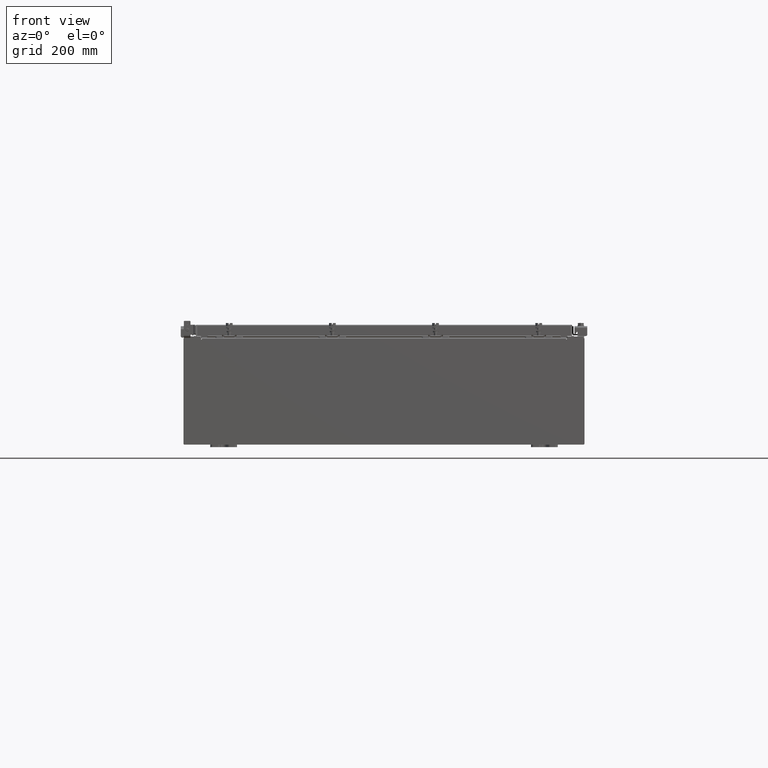
[diagram: clean part render]
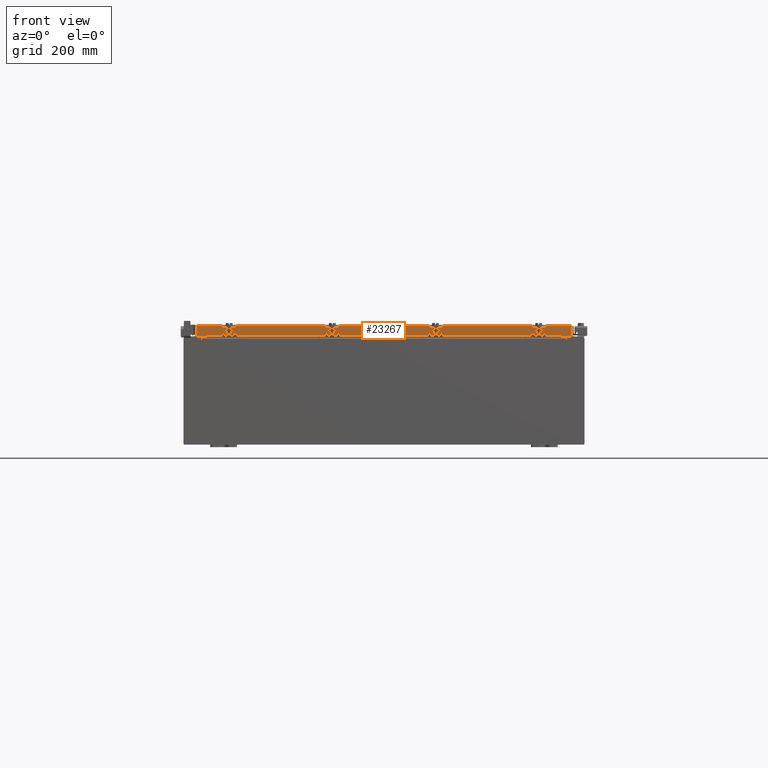
[diagram: same view with one face highlighted and labeled with its STEP entity id]
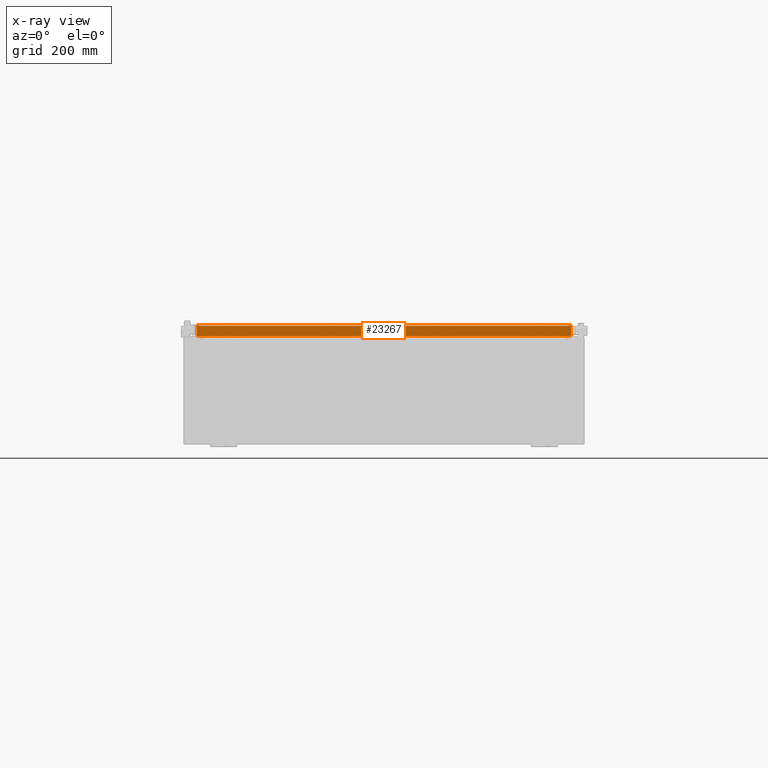
[diagram: x-ray of the same camera — body ghosted, the highlighted face saturated]
A machine part, front view. The second image highlights one B-rep face of the part: STEP entity #23267.
The next image is the same camera in x-ray: the body ghosted, the highlighted face saturated — about 0% of this face is hidden behind the body in this view.
In plain terms, the highlighted planar face has unit normal (-0, 1, -0).
Its self-contained STEP definition (entity closure, byte-faithful):
#486 = EDGE_CURVE ( 'NONE', #16178, #8409, #23968, .T. ) ;
#1827 = VECTOR ( 'NONE', #9123, 39.37007874015748100 ) ;
#2483 = CARTESIAN_POINT ( 'NONE',  ( -13.98915786437626500, -20.09400000000000800, 0.0000000000000000000 ) ) ;
#2510 = VERTEX_POINT ( 'NONE', #22119 ) ;
#2516 = CARTESIAN_POINT ( 'NONE',  ( 13.98915786437626700, -20.09400000000000800, -0.07470000000000015500 ) ) ;
#2807 = CARTESIAN_POINT ( 'NONE',  ( -13.98915786437626500, -20.09400000000000800, -0.08769999999999589200 ) ) ;
#3186 = LINE ( 'NONE', #2516, #7024 ) ;
#4509 = DIRECTION ( 'NONE',  ( -0.0000000000000000000, -4.376050147970506700E-031, -1.000000000000000000 ) ) ;
#4572 = EDGE_CURVE ( 'NONE', #14283, #22045, #22641, .T. ) ;
#5595 = PLANE ( 'NONE',  #14377 ) ;
#5641 = LINE ( 'NONE', #21385, #10084 ) ;
#5671 = DIRECTION ( 'NONE',  ( -1.000000000000000000, -1.552406872376339400E-016, 0.0000000000000000000 ) ) ;
#5696 = ORIENTED_EDGE ( 'NONE', *, *, #13472, .F. ) ;
#5881 = EDGE_CURVE ( 'NONE', #14283, #8409, #14639, .T. ) ;
#6152 = DIRECTION ( 'NONE',  ( -1.000000000000000000, -1.552406872376339400E-016, 1.212817869044015600E-016 ) ) ;
#6273 = DIRECTION ( 'NONE',  ( 0.0000000000000000000, -4.376050147970506700E-031, -1.000000000000000000 ) ) ;
#6751 = CARTESIAN_POINT ( 'NONE',  ( 13.23915786437626400, -20.09400000000000100, -0.8500000000000020900 ) ) ;
#7024 = VECTOR ( 'NONE', #4509, 39.37007874015748100 ) ;
#7220 = CARTESIAN_POINT ( 'NONE',  ( 14.07800000000000300, -20.09400000000000100, -0.08769999999999589200 ) ) ;
#8409 = VERTEX_POINT ( 'NONE', #11666 ) ;
#8462 = DIRECTION ( 'NONE',  ( -1.000000000000000000, -1.552406872376339400E-016, 1.212817869044015600E-016 ) ) ;
#9123 = DIRECTION ( 'NONE',  ( 1.000000000000000000, 1.552406872376339400E-016, -1.368455531567205100E-048 ) ) ;
#9885 = ORIENTED_EDGE ( 'NONE', *, *, #19281, .F. ) ;
#10084 = VECTOR ( 'NONE', #6152, 39.37007874015748100 ) ;
#10223 = LINE ( 'NONE', #6751, #14697 ) ;
#10491 = EDGE_LOOP ( 'NONE', ( #12923, #23444, #11911, #13586, #9885, #5696 ) ) ;
#11666 = CARTESIAN_POINT ( 'NONE',  ( -13.98915786437626500, -20.09400000000001200, -0.8499999999999966500 ) ) ;
#11911 = ORIENTED_EDGE ( 'NONE', *, *, #486, .F. ) ;
#12346 = EDGE_CURVE ( 'NONE', #21720, #16178, #10223, .T. ) ;
#12923 = ORIENTED_EDGE ( 'NONE', *, *, #4572, .F. ) ;
#13472 = EDGE_CURVE ( 'NONE', #22045, #2510, #3186, .T. ) ;
#13586 = ORIENTED_EDGE ( 'NONE', *, *, #12346, .F. ) ;
#14283 = VERTEX_POINT ( 'NONE', #2807 ) ;
#14377 = AXIS2_PLACEMENT_3D ( 'NONE', #18915, #17080, #5671 ) ;
#14595 = FACE_OUTER_BOUND ( 'NONE', #10491, .T. ) ;
#14639 = LINE ( 'NONE', #2483, #24148 ) ;
#14697 = VECTOR ( 'NONE', #18182, 39.37007874015748100 ) ;
#15525 = CARTESIAN_POINT ( 'NONE',  ( 13.98915786437626700, -20.09400000000000100, -0.08769999999999589200 ) ) ;
#16178 = VERTEX_POINT ( 'NONE', #20740 ) ;
#17080 = DIRECTION ( 'NONE',  ( -1.552406872376339400E-016, 1.000000000000000000, -4.376050147970506700E-031 ) ) ;
#18182 = DIRECTION ( 'NONE',  ( -1.000000000000000000, 0.0000000000000000000, 0.0000000000000000000 ) ) ;
#18915 = CARTESIAN_POINT ( 'NONE',  ( 3.119406369385835700E-015, -20.09400000000000800, 0.0000000000000000000 ) ) ;
#19281 = EDGE_CURVE ( 'NONE', #2510, #21720, #5641, .T. ) ;
#19550 = VECTOR ( 'NONE', #8462, 39.37007874015748100 ) ;
#19883 = CARTESIAN_POINT ( 'NONE',  ( 14.07800000000000300, -20.09400000000000800, -0.8499999999999999800 ) ) ;
#20740 = CARTESIAN_POINT ( 'NONE',  ( -13.23915786437626400, -20.09400000000000100, -0.8500000000000020900 ) ) ;
#21385 = CARTESIAN_POINT ( 'NONE',  ( 14.07800000000000300, -20.09400000000000800, -0.8499999999999999800 ) ) ;
#21720 = VERTEX_POINT ( 'NONE', #23930 ) ;
#22045 = VERTEX_POINT ( 'NONE', #15525 ) ;
#22119 = CARTESIAN_POINT ( 'NONE',  ( 13.98915786437626700, -20.09400000000000800, -0.8499999999999999800 ) ) ;
#22641 = LINE ( 'NONE', #7220, #1827 ) ;
#23267 = ADVANCED_FACE ( 'NONE', ( #14595 ), #5595, .F. ) ;
#23444 = ORIENTED_EDGE ( 'NONE', *, *, #5881, .T. ) ;
#23930 = CARTESIAN_POINT ( 'NONE',  ( 13.23915786437626200, -20.09400000000000100, -0.8500000000000020900 ) ) ;
#23968 = LINE ( 'NONE', #19883, #19550 ) ;
#24148 = VECTOR ( 'NONE', #6273, 39.37007874015748100 ) ;